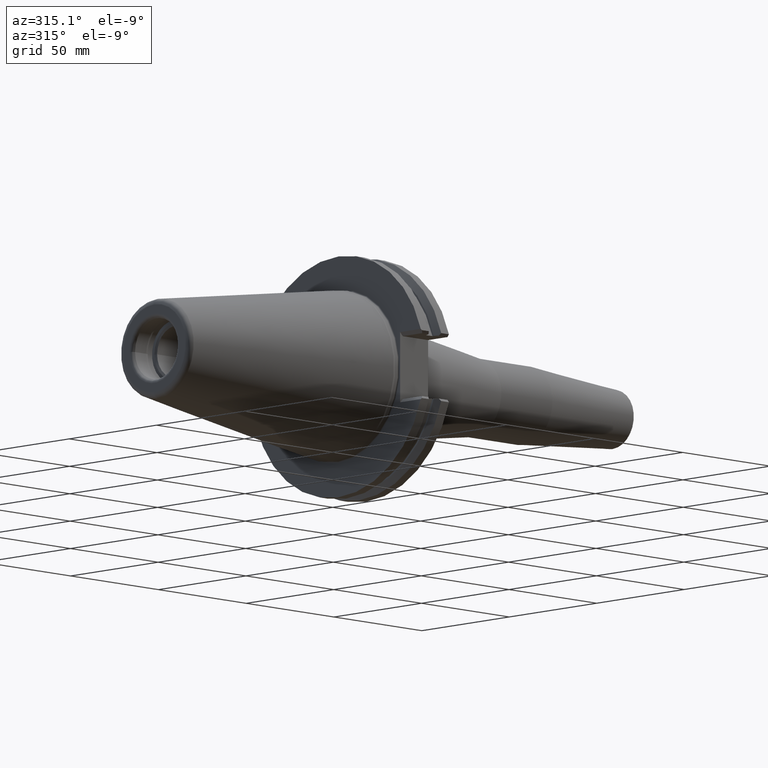
[diagram: clean part render]
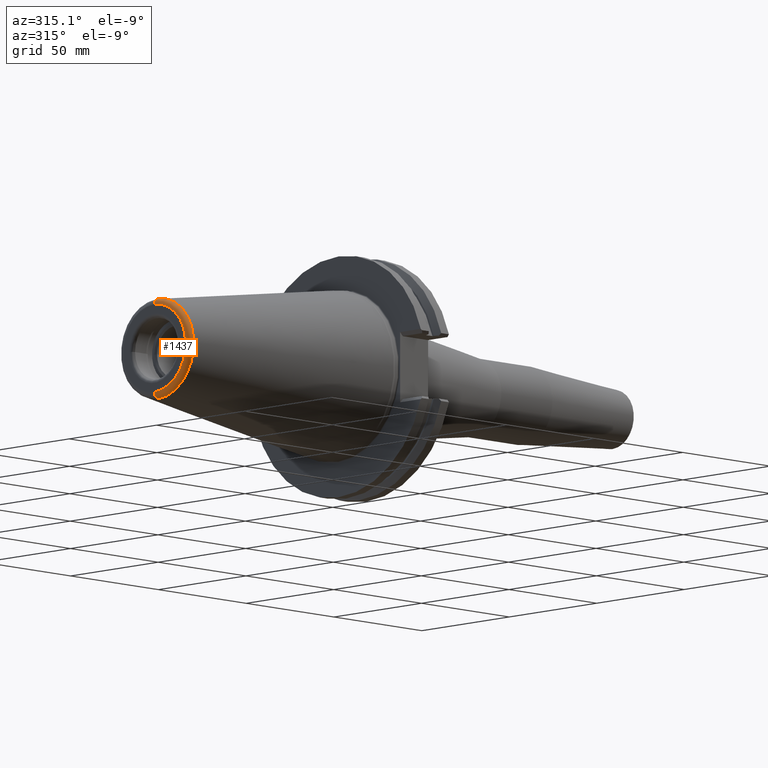
[diagram: same view with one face highlighted and labeled with its STEP entity id]
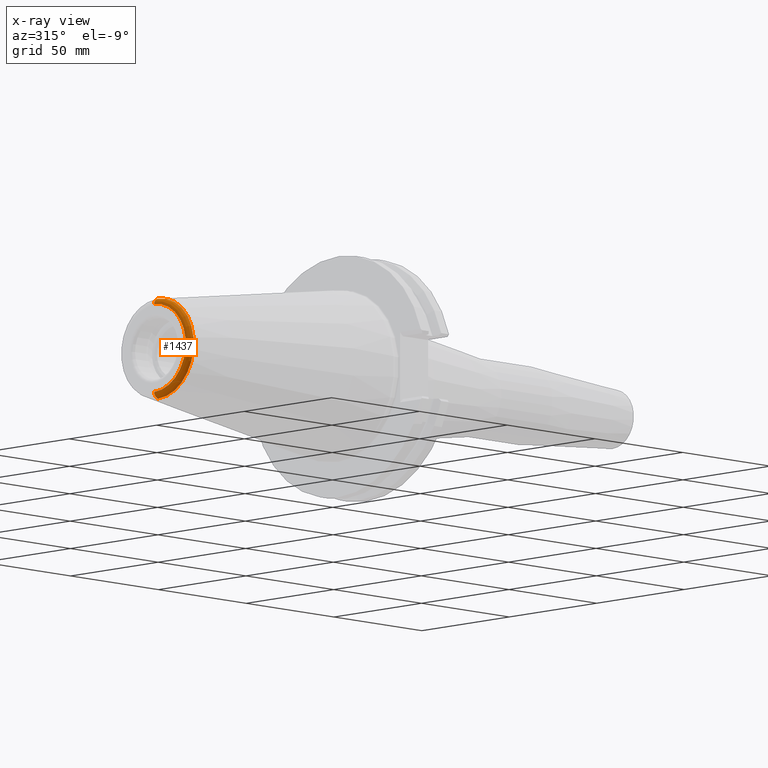
[diagram: x-ray of the same camera — body ghosted, the highlighted face saturated]
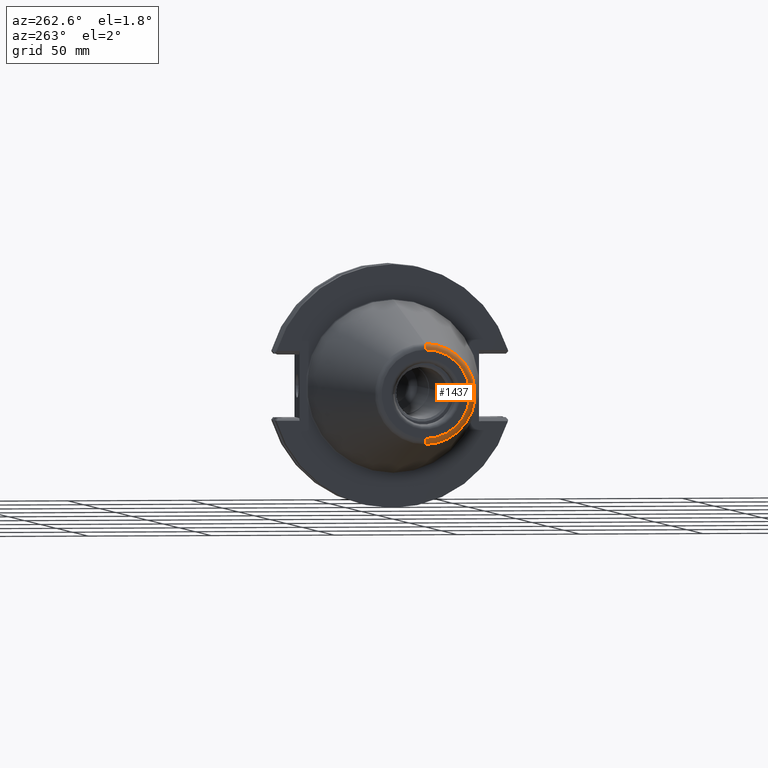
[diagram: same view with one face highlighted and labeled with its STEP entity id]
A machine part, auxiliary view. The second image highlights one B-rep face of the part: STEP entity #1437.
The next image is the same camera in x-ray: the body ghosted, the highlighted face saturated — about 0% of this face is hidden behind the body in this view.
A second angle (auxiliary view) of the same face is appended — the face is thin or edge-on in the first view.
In plain terms, the highlighted toroidal blend (fillet) surface has major radius 17.9246 mm and minor (blend) radius 2.5 mm.
Its self-contained STEP definition (entity closure, byte-faithful):
#29=CARTESIAN_POINT('',(-9.961076723398E1,0.E0,0.E0));
#30=DIRECTION('',(-1.E0,0.E0,0.E0));
#31=DIRECTION('',(0.E0,0.E0,-1.E0));
#32=AXIS2_PLACEMENT_3D('',#29,#30,#31);
#38=CARTESIAN_POINT('',(-9.925E1,0.E0,-1.792459727235E1));
#39=DIRECTION('',(0.E0,-1.E0,0.E0));
#40=DIRECTION('',(-1.E0,0.E0,0.E0));
#41=AXIS2_PLACEMENT_3D('',#38,#39,#40);
#53=CARTESIAN_POINT('',(-1.0175E2,0.E0,0.E0));
#54=DIRECTION('',(-1.E0,0.E0,0.E0));
#55=DIRECTION('',(0.E0,0.E0,-1.E0));
#56=AXIS2_PLACEMENT_3D('',#53,#54,#55);
#1074=CARTESIAN_POINT('',(-9.925E1,0.E0,1.792459727235E1));
#1075=DIRECTION('',(0.E0,1.E0,0.E0));
#1076=DIRECTION('',(-1.E0,0.E0,0.E0));
#1077=AXIS2_PLACEMENT_3D('',#1074,#1075,#1076);
#1139=CARTESIAN_POINT('',(-1.0175E2,0.E0,-1.792459727235E1));
#1140=CARTESIAN_POINT('',(-1.0175E2,0.E0,1.792459727235E1));
#1141=VERTEX_POINT('',#1139);
#1142=VERTEX_POINT('',#1140);
#1143=CARTESIAN_POINT('',(-9.961076723398E1,0.E0,-2.039842972482E1));
#1144=CARTESIAN_POINT('',(-9.961076723398E1,0.E0,2.039842972482E1));
#1145=VERTEX_POINT('',#1143);
#1146=VERTEX_POINT('',#1144);
#1423=CARTESIAN_POINT('',(-9.925E1,0.E0,0.E0));
#1424=DIRECTION('',(1.E0,0.E0,0.E0));
#1425=DIRECTION('',(0.E0,1.532670324466E-2,-9.998825391853E-1));
#1426=AXIS2_PLACEMENT_3D('',#1423,#1424,#1425);
#1427=TOROIDAL_SURFACE('',#1426,1.792459727235E1,2.5E0);
#1429=ORIENTED_EDGE('',*,*,#1428,.T.);
#1431=ORIENTED_EDGE('',*,*,#1430,.T.);
#1432=ORIENTED_EDGE('',*,*,#1417,.F.);
#1434=ORIENTED_EDGE('',*,*,#1433,.F.);
#1435=EDGE_LOOP('',(#1429,#1431,#1432,#1434));
#1436=FACE_OUTER_BOUND('',#1435,.F.);
#1437=ADVANCED_FACE('',(#1436),#1427,.T.);
#33=CIRCLE('',#32,2.039842972482E1);
#42=CIRCLE('',#41,2.5E0);
#57=CIRCLE('',#56,1.792459727235E1);
#1078=CIRCLE('',#1077,2.5E0);
#1417=EDGE_CURVE('',#1145,#1146,#33,.T.);
#1428=EDGE_CURVE('',#1141,#1142,#57,.T.);
#1430=EDGE_CURVE('',#1142,#1146,#1078,.T.);
#1433=EDGE_CURVE('',#1141,#1145,#42,.T.);